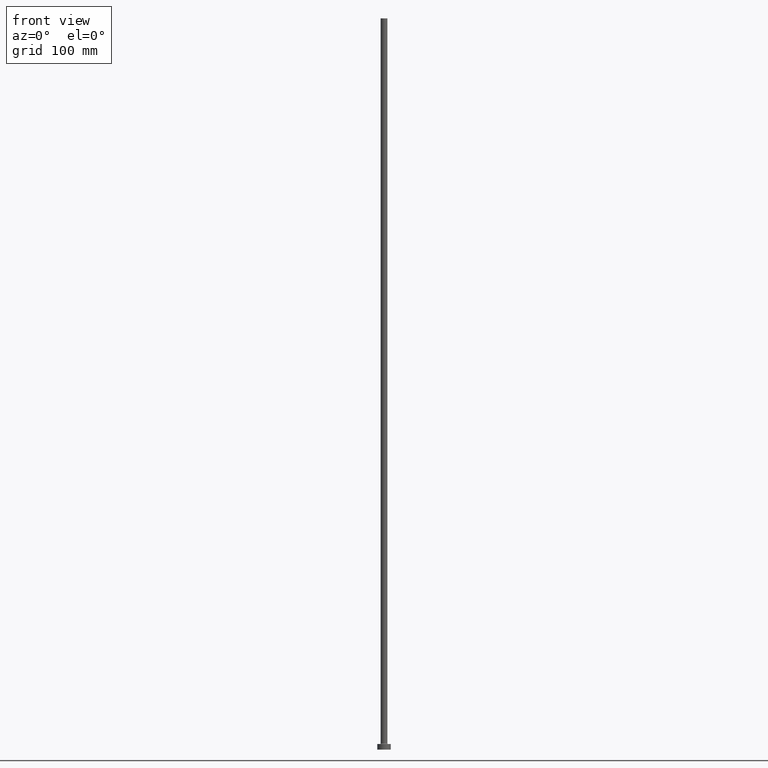
[diagram: clean part render]
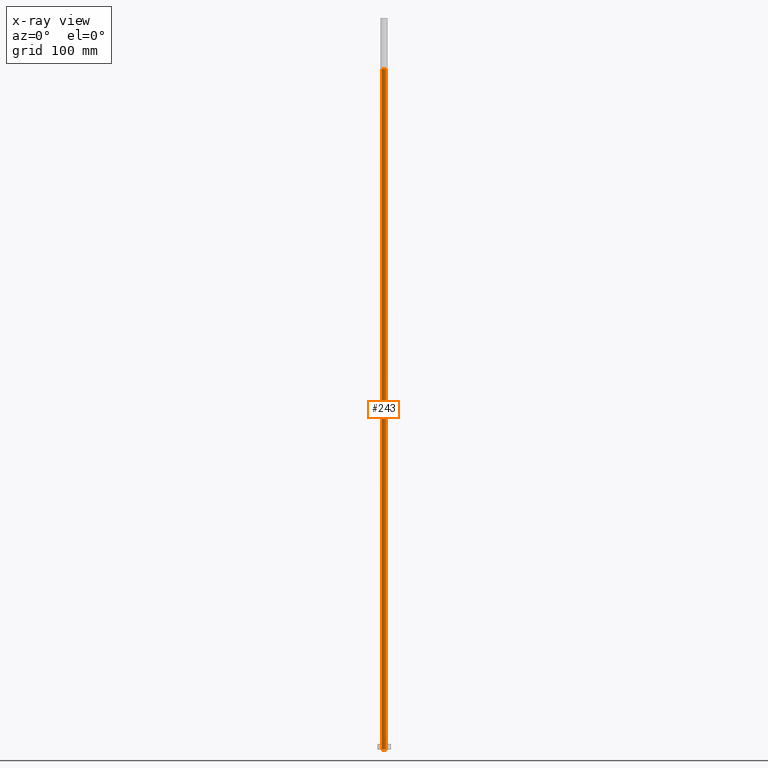
[diagram: x-ray — body ghosted, one internal face saturated and labeled with its STEP entity id]
A machine part, front view, then the same camera in x-ray: the body is ghosted and one INTERNAL B-rep face — a face not visible from any outside direction — is saturated and labeled: STEP entity #243.
In plain terms, the highlighted cylindrical surface (edge-blend (fillet) strip) has radius 1.9 mm, axis along (0, 0, -1).
Its self-contained STEP definition (entity closure, byte-faithful):
#6 = CARTESIAN_POINT ( 'NONE',  ( 0.000000000000000000, 0.000000000000000000, 0.000000000000000000 ) ) ;
#27 = VERTEX_POINT ( 'NONE', #461 ) ;
#40 = VECTOR ( 'NONE', #44, 1000.000000000000000 ) ;
#44 = DIRECTION ( 'NONE',  ( 0.000000000000000000, 0.000000000000000000, -1.000000000000000000 ) ) ;
#50 = CARTESIAN_POINT ( 'NONE',  ( -1.899999999999999911, 0.000000000000000000, 0.000000000000000000 ) ) ;
#52 = VECTOR ( 'NONE', #250, 1000.000000000000000 ) ;
#54 = ORIENTED_EDGE ( 'NONE', *, *, #367, .T. ) ;
#101 = FACE_OUTER_BOUND ( 'NONE', #140, .T. ) ;
#105 = VERTEX_POINT ( 'NONE', #50 ) ;
#106 = DIRECTION ( 'NONE',  ( 0.000000000000000000, 0.000000000000000000, -1.000000000000000000 ) ) ;
#107 = ORIENTED_EDGE ( 'NONE', *, *, #113, .T. ) ;
#110 = CARTESIAN_POINT ( 'NONE',  ( -1.899999999999999911, 0.000000000000000000, 605.0000000000000000 ) ) ;
#113 = EDGE_CURVE ( 'NONE', #458, #27, #326, .T. ) ;
#114 = LINE ( 'NONE', #387, #52 ) ;
#122 = LINE ( 'NONE', #284, #40 ) ;
#125 = CARTESIAN_POINT ( 'NONE',  ( 0.000000000000000000, 0.000000000000000000, 605.0000000000000000 ) ) ;
#127 = DIRECTION ( 'NONE',  ( -0.000000000000000000, -0.000000000000000000, -1.000000000000000000 ) ) ;
#140 = EDGE_LOOP ( 'NONE', ( #107, #54, #454, #449 ) ) ;
#205 = CYLINDRICAL_SURFACE ( 'NONE', #337, 1.899999999999999911 ) ;
#206 = CARTESIAN_POINT ( 'NONE',  ( 0.000000000000000000, 0.000000000000000000, 610.3740115370177364 ) ) ;
#231 = DIRECTION ( 'NONE',  ( 0.000000000000000000, 0.000000000000000000, 1.000000000000000000 ) ) ;
#243 = ADVANCED_FACE ( 'NONE', ( #101 ), #205, .F. ) ;
#250 = DIRECTION ( 'NONE',  ( 0.000000000000000000, 0.000000000000000000, -1.000000000000000000 ) ) ;
#262 = VERTEX_POINT ( 'NONE', #420 ) ;
#279 = EDGE_CURVE ( 'NONE', #262, #105, #451, .T. ) ;
#284 = CARTESIAN_POINT ( 'NONE',  ( -1.899999999999999911, 0.000000000000000000, 610.3740115370177364 ) ) ;
#296 = DIRECTION ( 'NONE',  ( 1.000000000000000000, 0.000000000000000000, 0.000000000000000000 ) ) ;
#302 = EDGE_CURVE ( 'NONE', #458, #105, #122, .T. ) ;
#326 = CIRCLE ( 'NONE', #450, 1.899999999999999911 ) ;
#337 = AXIS2_PLACEMENT_3D ( 'NONE', #206, #106, #340 ) ;
#340 = DIRECTION ( 'NONE',  ( -1.000000000000000000, 0.000000000000000000, 0.000000000000000000 ) ) ;
#356 = DIRECTION ( 'NONE',  ( 1.000000000000000000, 0.000000000000000000, 0.000000000000000000 ) ) ;
#367 = EDGE_CURVE ( 'NONE', #27, #262, #114, .T. ) ;
#387 = CARTESIAN_POINT ( 'NONE',  ( 1.899999999999999911, 2.326828918379971365E-16, 610.3740115370177364 ) ) ;
#402 = AXIS2_PLACEMENT_3D ( 'NONE', #6, #127, #356 ) ;
#420 = CARTESIAN_POINT ( 'NONE',  ( 1.899999999999999911, 2.326828918379971365E-16, 0.000000000000000000 ) ) ;
#449 = ORIENTED_EDGE ( 'NONE', *, *, #302, .F. ) ;
#450 = AXIS2_PLACEMENT_3D ( 'NONE', #125, #231, #296 ) ;
#451 = CIRCLE ( 'NONE', #402, 1.899999999999999911 ) ;
#454 = ORIENTED_EDGE ( 'NONE', *, *, #279, .T. ) ;
#458 = VERTEX_POINT ( 'NONE', #110 ) ;
#461 = CARTESIAN_POINT ( 'NONE',  ( 1.899999999999999911, 2.326828918379971365E-16, 605.0000000000000000 ) ) ;